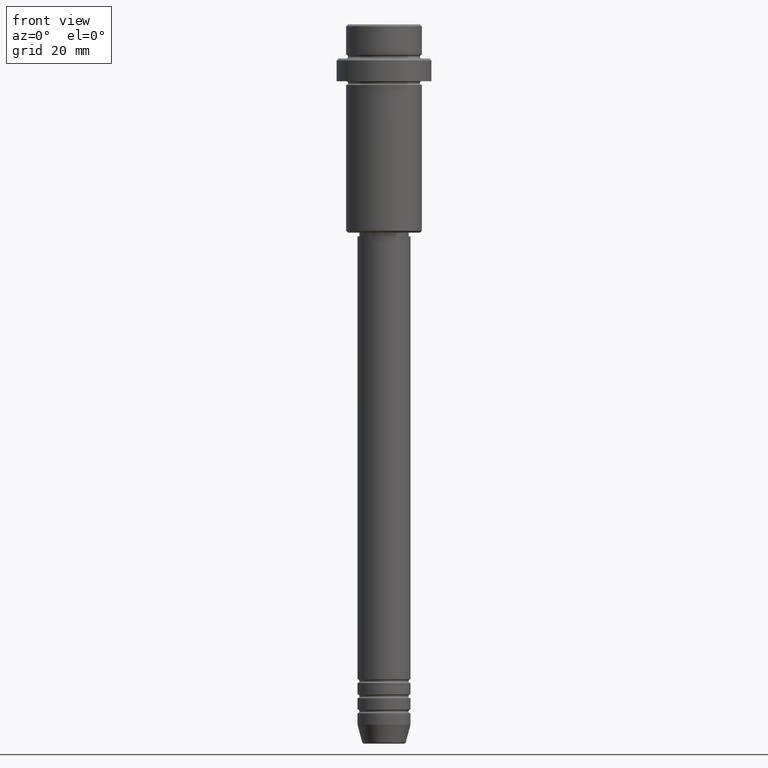
[diagram: clean part render]
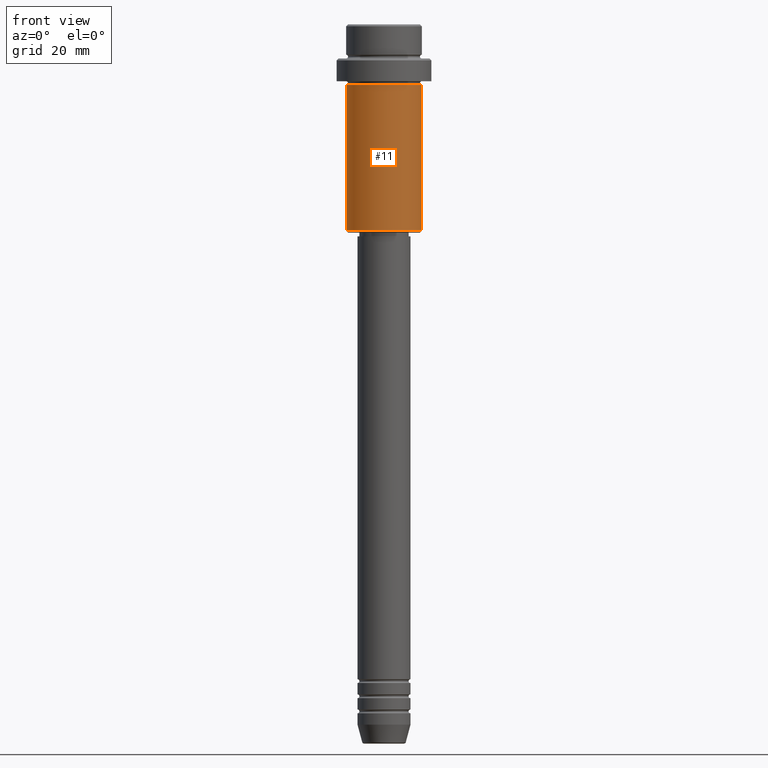
[diagram: same view with one face highlighted and labeled with its STEP entity id]
A machine part, front view. The second image highlights one B-rep face of the part: STEP entity #11.
In plain terms, the highlighted cylindrical surface (partial cylindrical patch) has radius 10 mm, axis along (-0, -0, 1).
Its self-contained STEP definition (entity closure, byte-faithful):
#11 = ADVANCED_FACE ( 'NONE', ( #1041 ), #726, .T. ) ;
#28 = EDGE_CURVE ( 'NONE', #319, #716, #1342, .T. ) ;
#49 = DIRECTION ( 'NONE',  ( -0.000000000000000000, -0.000000000000000000, 1.000000000000000000 ) ) ;
#134 = VERTEX_POINT ( 'NONE', #667 ) ;
#142 = CARTESIAN_POINT ( 'NONE',  ( 10.00000000000000000, 0.000000000000000000, -16.00000000000000000 ) ) ;
#157 = CARTESIAN_POINT ( 'NONE',  ( 0.000000000000000000, 0.000000000000000000, -54.50000000000002842 ) ) ;
#221 = ORIENTED_EDGE ( 'NONE', *, *, #435, .F. ) ;
#229 = CARTESIAN_POINT ( 'NONE',  ( 10.00000000000000000, 0.000000000000000000, 0.000000000000000000 ) ) ;
#239 = AXIS2_PLACEMENT_3D ( 'NONE', #609, #508, #940 ) ;
#275 = DIRECTION ( 'NONE',  ( -1.000000000000000000, 0.000000000000000000, 0.000000000000000000 ) ) ;
#282 = CARTESIAN_POINT ( 'NONE',  ( 0.000000000000000000, 0.000000000000000000, -16.00000000000000000 ) ) ;
#290 = VECTOR ( 'NONE', #49, 1000.000000000000000 ) ;
#319 = VERTEX_POINT ( 'NONE', #988 ) ;
#330 = AXIS2_PLACEMENT_3D ( 'NONE', #157, #930, #275 ) ;
#355 = DIRECTION ( 'NONE',  ( 1.000000000000000000, 0.000000000000000000, 0.000000000000000000 ) ) ;
#399 = CIRCLE ( 'NONE', #823, 10.00000000000000000 ) ;
#410 = EDGE_LOOP ( 'NONE', ( #1033, #601, #1146, #221 ) ) ;
#435 = EDGE_CURVE ( 'NONE', #716, #483, #399, .T. ) ;
#445 = DIRECTION ( 'NONE',  ( -0.000000000000000000, -0.000000000000000000, 1.000000000000000000 ) ) ;
#471 = DIRECTION ( 'NONE',  ( -0.000000000000000000, -0.000000000000000000, 1.000000000000000000 ) ) ;
#472 = LINE ( 'NONE', #229, #290 ) ;
#483 = VERTEX_POINT ( 'NONE', #142 ) ;
#508 = DIRECTION ( 'NONE',  ( -0.000000000000000000, -0.000000000000000000, 1.000000000000000000 ) ) ;
#528 = EDGE_CURVE ( 'NONE', #134, #483, #472, .T. ) ;
#601 = ORIENTED_EDGE ( 'NONE', *, *, #917, .T. ) ;
#609 = CARTESIAN_POINT ( 'NONE',  ( 0.000000000000000000, 0.000000000000000000, 0.000000000000000000 ) ) ;
#616 = VECTOR ( 'NONE', #445, 1000.000000000000000 ) ;
#667 = CARTESIAN_POINT ( 'NONE',  ( 10.00000000000000000, 0.000000000000000000, -54.50000000000002842 ) ) ;
#716 = VERTEX_POINT ( 'NONE', #1288 ) ;
#726 = CYLINDRICAL_SURFACE ( 'NONE', #239, 10.00000000000000000 ) ;
#823 = AXIS2_PLACEMENT_3D ( 'NONE', #282, #471, #355 ) ;
#917 = EDGE_CURVE ( 'NONE', #319, #134, #1029, .T. ) ;
#930 = DIRECTION ( 'NONE',  ( -0.000000000000000000, -0.000000000000000000, 1.000000000000000000 ) ) ;
#940 = DIRECTION ( 'NONE',  ( 1.000000000000000000, 0.000000000000000000, 0.000000000000000000 ) ) ;
#988 = CARTESIAN_POINT ( 'NONE',  ( -10.00000000000000000, 1.224646799147353256E-15, -54.50000000000002842 ) ) ;
#1029 = CIRCLE ( 'NONE', #330, 10.00000000000000000 ) ;
#1033 = ORIENTED_EDGE ( 'NONE', *, *, #28, .F. ) ;
#1041 = FACE_OUTER_BOUND ( 'NONE', #410, .T. ) ;
#1146 = ORIENTED_EDGE ( 'NONE', *, *, #528, .T. ) ;
#1288 = CARTESIAN_POINT ( 'NONE',  ( -10.00000000000000000, 1.224646799147353256E-15, -16.00000000000000000 ) ) ;
#1326 = CARTESIAN_POINT ( 'NONE',  ( -10.00000000000000000, 1.224646799147353256E-15, 0.000000000000000000 ) ) ;
#1342 = LINE ( 'NONE', #1326, #616 ) ;